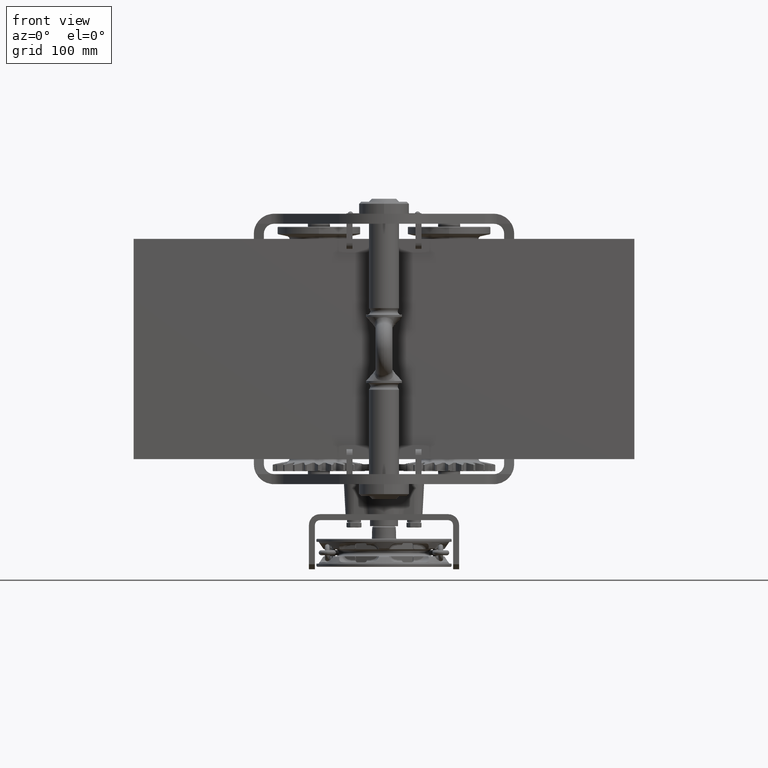
[diagram: clean part render]
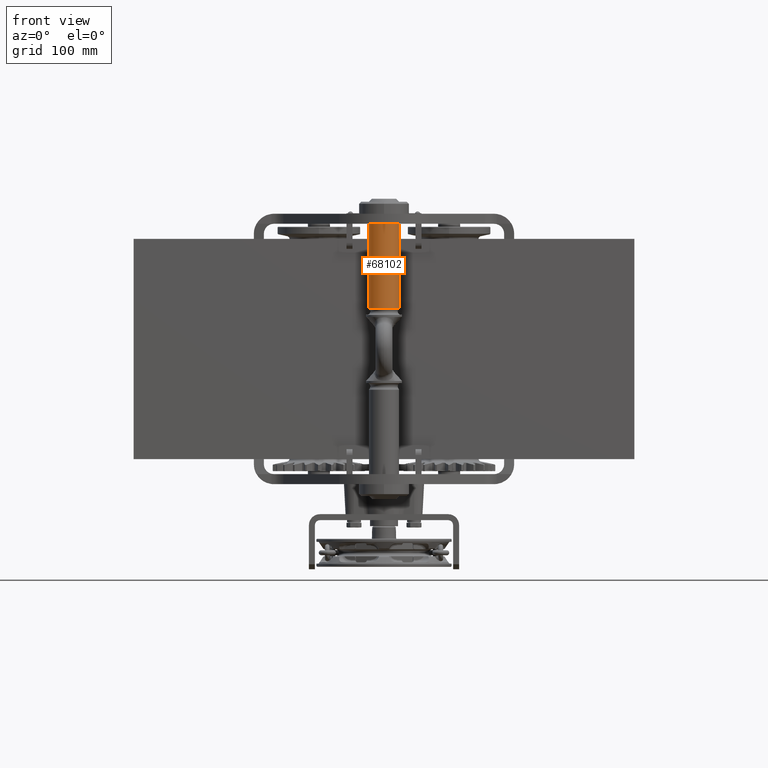
[diagram: same view with one face highlighted and labeled with its STEP entity id]
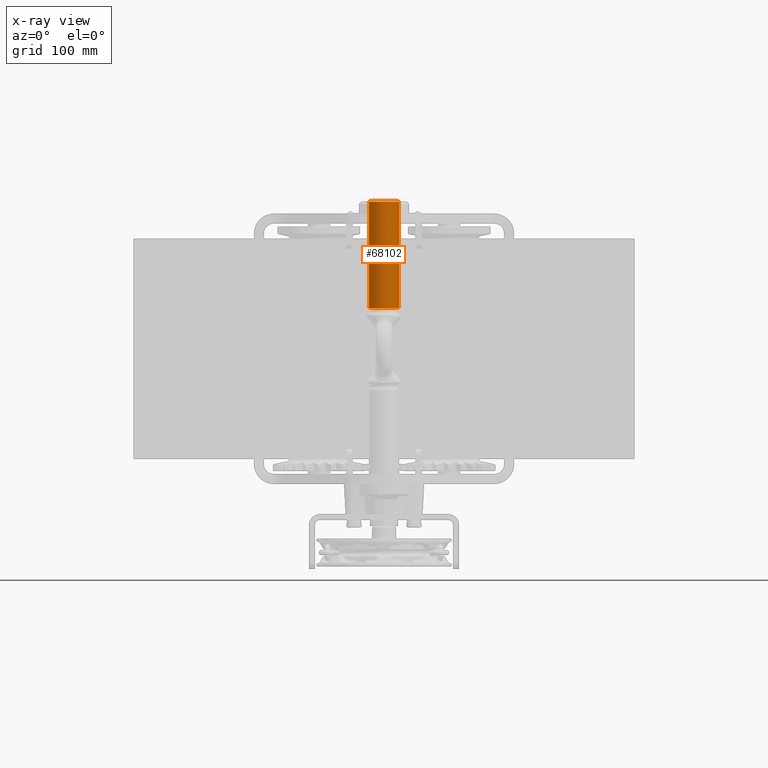
[diagram: x-ray of the same camera — body ghosted, the highlighted face saturated]
A machine part, front view. The second image highlights one B-rep face of the part: STEP entity #68102.
The next image is the same camera in x-ray: the body ghosted, the highlighted face saturated — about 0% of this face is hidden behind the body in this view.
In plain terms, the highlighted cylindrical surface (edge-blend (fillet) strip) has radius 15 mm, axis along (0, 0, 1).
Its self-contained STEP definition (entity closure, byte-faithful):
#4389 = CARTESIAN_POINT ( 'NONE',  ( -15.00000000000000900, -159.0000000000000000, 147.0000000000000300 ) ) ;
#6168 = EDGE_CURVE ( 'NONE', #36958, #27758, #15390, .T. ) ;
#13133 = DIRECTION ( 'NONE',  ( 6.946774559474718100E-017, 5.548357037863925300E-017, 1.000000000000000000 ) ) ;
#13216 = CYLINDRICAL_SURFACE ( 'NONE', #38533, 15.00000000000000000 ) ;
#14700 = EDGE_CURVE ( 'NONE', #76804, #77175, #36311, .T. ) ;
#15390 = CIRCLE ( 'NONE', #75316, 15.00000000000000000 ) ;
#20414 = CARTESIAN_POINT ( 'NONE',  ( 14.99999999999999100, -159.0000000000000000, 147.0000000000000300 ) ) ;
#20788 = EDGE_CURVE ( 'NONE', #76804, #36958, #90763, .T. ) ;
#21338 = DIRECTION ( 'NONE',  ( 6.946774559474718100E-017, 5.548357037863925300E-017, 1.000000000000000000 ) ) ;
#27268 = CARTESIAN_POINT ( 'NONE',  ( -8.510140031824785000E-015, -159.0000000000000000, 167.4491825357096100 ) ) ;
#27758 = VERTEX_POINT ( 'NONE', #20414 ) ;
#28179 = CARTESIAN_POINT ( 'NONE',  ( 14.99999999999999100, -159.0000000000000000, 167.4491825357096100 ) ) ;
#28436 = DIRECTION ( 'NONE',  ( 6.946774559474718100E-017, 5.548357037863925300E-017, 1.000000000000000000 ) ) ;
#30710 = LINE ( 'NONE', #28179, #63147 ) ;
#36133 = CARTESIAN_POINT ( 'NONE',  ( 14.99999999999998200, -159.0000000000000000, 40.73205080756886800 ) ) ;
#36311 = CIRCLE ( 'NONE', #74724, 15.00000000000000000 ) ;
#36958 = VERTEX_POINT ( 'NONE', #4389 ) ;
#37316 = CARTESIAN_POINT ( 'NONE',  ( -15.00000000000000900, -159.0000000000000000, 167.4491825357096100 ) ) ;
#38334 = DIRECTION ( 'NONE',  ( 6.946774559474718100E-017, 5.548357037863925300E-017, 1.000000000000000000 ) ) ;
#38533 = AXIS2_PLACEMENT_3D ( 'NONE', #27268, #83185, #61160 ) ;
#41289 = CARTESIAN_POINT ( 'NONE',  ( -9.930698641836006400E-015, -159.0000000000000000, 147.0000000000000300 ) ) ;
#46543 = DIRECTION ( 'NONE',  ( -1.000000000000000000, 0.0000000000000000000, 0.0000000000000000000 ) ) ;
#50158 = ORIENTED_EDGE ( 'NONE', *, *, #53354, .T. ) ;
#53354 = EDGE_CURVE ( 'NONE', #77175, #27758, #30710, .T. ) ;
#61160 = DIRECTION ( 'NONE',  ( -1.000000000000000000, 0.0000000000000000000, 0.0000000000000000000 ) ) ;
#63147 = VECTOR ( 'NONE', #13133, 1000.000000000000000 ) ;
#68102 = ADVANCED_FACE ( 'NONE', ( #84498 ), #13216, .T. ) ;
#69487 = VECTOR ( 'NONE', #38334, 1000.000000000000000 ) ;
#74724 = AXIS2_PLACEMENT_3D ( 'NONE', #94309, #21338, #46543 ) ;
#75316 = AXIS2_PLACEMENT_3D ( 'NONE', #41289, #28436, #79832 ) ;
#76804 = VERTEX_POINT ( 'NONE', #86588 ) ;
#77175 = VERTEX_POINT ( 'NONE', #36133 ) ;
#79832 = DIRECTION ( 'NONE',  ( -1.000000000000000000, 0.0000000000000000000, 0.0000000000000000000 ) ) ;
#81378 = ORIENTED_EDGE ( 'NONE', *, *, #6168, .F. ) ;
#83185 = DIRECTION ( 'NONE',  ( 6.946774559474718100E-017, 5.548357037863925300E-017, 1.000000000000000000 ) ) ;
#84498 = FACE_OUTER_BOUND ( 'NONE', #88921, .T. ) ;
#86588 = CARTESIAN_POINT ( 'NONE',  ( -15.00000000000001600, -159.0000000000000000, 40.73205080756886800 ) ) ;
#87715 = ORIENTED_EDGE ( 'NONE', *, *, #20788, .F. ) ;
#88921 = EDGE_LOOP ( 'NONE', ( #99773, #50158, #81378, #87715 ) ) ;
#90763 = LINE ( 'NONE', #37316, #69487 ) ;
#94309 = CARTESIAN_POINT ( 'NONE',  ( -1.731289350121133400E-014, -159.0000000000000000, 40.73205080756886800 ) ) ;
#99773 = ORIENTED_EDGE ( 'NONE', *, *, #14700, .T. ) ;